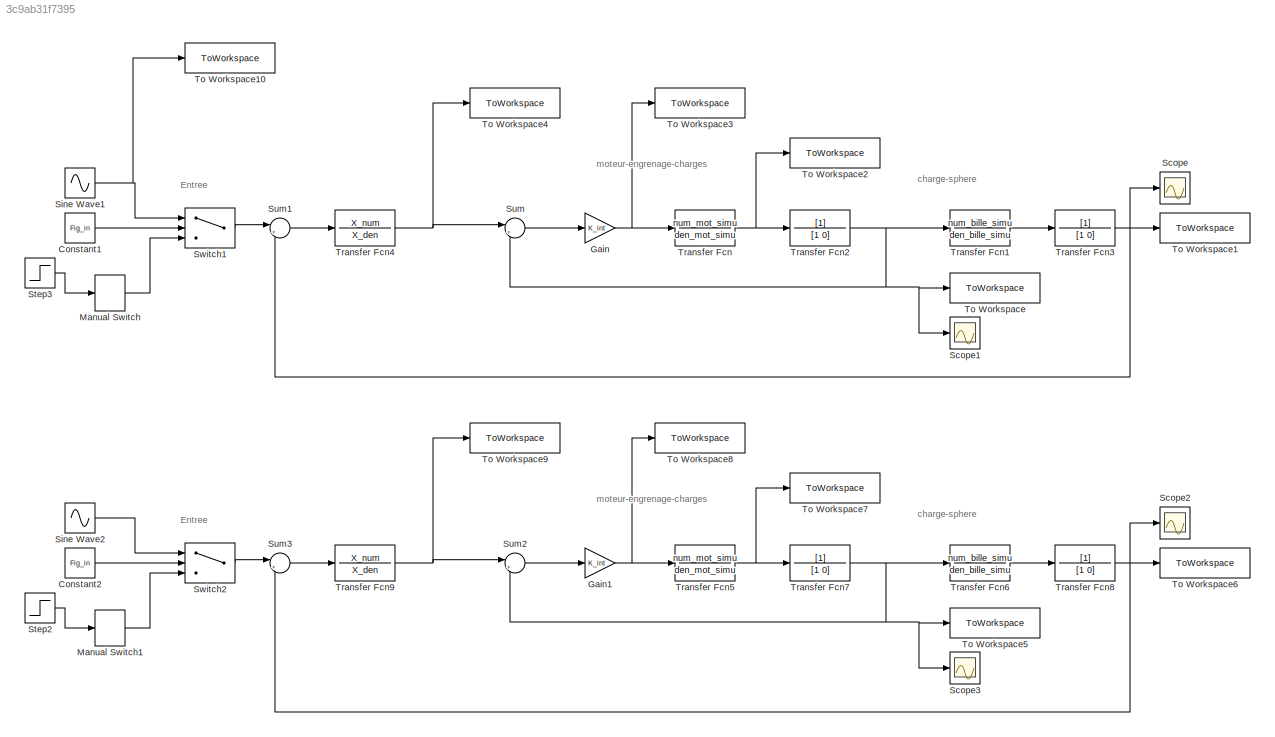
MODEL slx_3c9ab31f7395
KIND model
CONFIG AbsTol = auto
CONFIG EnableMultiTasking = off
CONFIG FixedStep = auto
CONFIG MaxStep = auto
CONFIG MinStep = auto
CONFIG RelTol = 1e-3
CONFIG SampleTimeConstraint = Unconstrained
CONFIG SolverName = VariableStepAuto
CONFIG StartTime = 0.0
CONFIG StopTime = 10
BLOCK [Constant] Constant1
  Value = Fig_in
BLOCK [Constant] Constant2
  Value = Fig_in
BLOCK [Gain] Gain
  Gain = K_int
BLOCK [Gain] Gain1
  Gain = K_int
BLOCK [ManualSwitch] Manual Switch
BLOCK [ManualSwitch] Manual Switch1
BLOCK [Scope] Scope
  Floating = off
  NumInputPorts = 1
  ScopeSpecificationString = Simulink.scopes.TimeScopeBlockCfg('CurrentConfiguration', extmgr.ConfigurationSet(extmgr.Configuration('Core','General UI',true),extmgr.Configuration('Core','Source UI',true),extmgr.Configuration('Sources','WiredSimulink',true),extmgr.Configuration('Visuals','Time Domain',true),extmgr.Configuration('Tools','Plot Navigation',true),extmgr.Configuration('Tools','Measurements',true)),'Version','2024a'...<+31ch>
BLOCK [Scope] Scope1
  Floating = off
  NumInputPorts = 1
  ScopeSpecificationString = Simulink.scopes.TimeScopeBlockCfg('CurrentConfiguration', extmgr.ConfigurationSet(extmgr.Configuration('Core','General UI',true),extmgr.Configuration('Core','Source UI',true),extmgr.Configuration('Sources','WiredSimulink',true,'DataLoggingVariableName','ScopeData1'),extmgr.Configuration('Visuals','Time Domain',true),extmgr.Configuration('Tools','Plot Navigation',true),extmgr.Configuration('Tools',...<+70ch>
BLOCK [Scope] Scope2
  Floating = off
  NumInputPorts = 1
  ScopeSpecificationString = Simulink.scopes.TimeScopeBlockCfg('CurrentConfiguration', extmgr.ConfigurationSet(extmgr.Configuration('Core','General UI',true),extmgr.Configuration('Core','Source UI',true),extmgr.Configuration('Sources','WiredSimulink',true,'DataLoggingVariableName','ScopeData1'),extmgr.Configuration('Visuals','Time Domain',true),extmgr.Configuration('Tools','Plot Navigation',true),extmgr.Configuration('Tools',...<+70ch>
BLOCK [Scope] Scope3
  Floating = off
  NumInputPorts = 1
  ScopeSpecificationString = Simulink.scopes.TimeScopeBlockCfg('CurrentConfiguration', extmgr.ConfigurationSet(extmgr.Configuration('Core','General UI',true),extmgr.Configuration('Core','Source UI',true),extmgr.Configuration('Sources','WiredSimulink',true,'DataLoggingVariableName','ScopeData2'),extmgr.Configuration('Visuals','Time Domain',true),extmgr.Configuration('Tools','Plot Navigation',true),extmgr.Configuration('Tools',...<+70ch>
BLOCK [Sin] Sine Wave1
  Amplitude = Test_Position
  Frequency = Frequence
  SampleTime = 0
BLOCK [Sin] Sine Wave2
  Amplitude = Test_Position
  Frequency = Frequence
  SampleTime = 0
BLOCK [Step] Step2
  After = Test_Position
  SampleTime = 0
BLOCK [Step] Step3
  After = Test_Position
  SampleTime = 0
BLOCK [Sum] Sum
  Inputs = |+-
BLOCK [Sum] Sum1
  Inputs = |+-
BLOCK [Sum] Sum2
  Inputs = |+-
BLOCK [Sum] Sum3
  Inputs = |+-
BLOCK [Switch] Switch1
  Criteria = u2 > Threshold
  InputSameDT = off
  SaturateOnIntegerOverflow = off
BLOCK [Switch] Switch2
  Criteria = u2 > Threshold
  InputSameDT = off
  SaturateOnIntegerOverflow = off
BLOCK [ToWorkspace] To Workspace
  FixptAsFi = on
  MaxDataPoints = inf
  SampleTime = -1
  Save2DSignal = 2-D array (concatenate along first dimension)
  SaveFormat = Timeseries
  VariableName = Theta_C_X
BLOCK [ToWorkspace] To Workspace1
  FixptAsFi = on
  MaxDataPoints = inf
  SampleTime = -1
  SaveFormat = Timeseries
  VariableName = X
BLOCK [ToWorkspace] To Workspace10
  FixptAsFi = on
  MaxDataPoints = inf
  SampleTime = -1
  Save2DSignal = 2-D array (concatenate along first dimension)
  SaveFormat = Timeseries
  VariableName = Entree
BLOCK [ToWorkspace] To Workspace2
  FixptAsFi = on
  MaxDataPoints = inf
  SampleTime = -1
  SaveFormat = Timeseries
  VariableName = Omega_C_X
BLOCK [ToWorkspace] To Workspace3
  FixptAsFi = on
  MaxDataPoints = inf
  SampleTime = -1
  Save2DSignal = 2-D array (concatenate along first dimension)
  SaveFormat = Timeseries
  VariableName = Vm_out_X
BLOCK [ToWorkspace] To Workspace4
  FixptAsFi = on
  MaxDataPoints = inf
  SampleTime = -1
  Save2DSignal = 2-D array (concatenate along first dimension)
  SaveFormat = Timeseries
  VariableName = Theta_Cd_X
BLOCK [ToWorkspace] To Workspace5
  FixptAsFi = on
  MaxDataPoints = inf
  SampleTime = -1
  Save2DSignal = 2-D array (concatenate along first dimension)
  SaveFormat = Timeseries
  VariableName = Theta_C_Y
BLOCK [ToWorkspace] To Workspace6
  FixptAsFi = on
  MaxDataPoints = inf
  SampleTime = -1
  SaveFormat = Timeseries
  VariableName = Y
BLOCK [ToWorkspace] To Workspace7
  FixptAsFi = on
  MaxDataPoints = inf
  SampleTime = -1
  SaveFormat = Timeseries
  VariableName = Omega_C_Y
BLOCK [ToWorkspace] To Workspace8
  FixptAsFi = on
  MaxDataPoints = inf
  SampleTime = -1
  Save2DSignal = 2-D array (concatenate along first dimension)
  SaveFormat = Timeseries
  VariableName = Vm_out_Y
BLOCK [ToWorkspace] To Workspace9
  FixptAsFi = on
  MaxDataPoints = inf
  SampleTime = -1
  Save2DSignal = 2-D array (concatenate along first dimension)
  SaveFormat = Timeseries
  VariableName = Theta_Cd_Y
BLOCK [TransferFcn] Transfer Fcn
  Denominator = den_mot_simu
  Numerator = num_mot_simu
BLOCK [TransferFcn] Transfer Fcn1
  Denominator = den_bille_simu
  Numerator = num_bille_simu
BLOCK [TransferFcn] Transfer Fcn2
  Denominator = [1 0]
BLOCK [TransferFcn] Transfer Fcn3
  Denominator = [1 0]
BLOCK [TransferFcn] Transfer Fcn4
  Denominator = X_den
  Numerator = X_num
BLOCK [TransferFcn] Transfer Fcn5
  Denominator = den_mot_simu
  Numerator = num_mot_simu
BLOCK [TransferFcn] Transfer Fcn6
  Denominator = den_bille_simu
  Numerator = num_bille_simu
BLOCK [TransferFcn] Transfer Fcn7
  Denominator = [1 0]
BLOCK [TransferFcn] Transfer Fcn8
  Denominator = [1 0]
BLOCK [TransferFcn] Transfer Fcn9
  Denominator = X_den
  Numerator = X_num
ANNOTATION (root): Entree
ANNOTATION (root): charge-sphere
ANNOTATION (root): moteur-engrenage-charges
LINE Constant1:1 -> Switch1:2
LINE Constant2:1 -> Switch2:2
NET Gain1:1 -> To Workspace8:1, Transfer Fcn5:1
NET Gain:1 -> To Workspace3:1, Transfer Fcn:1
LINE Manual Switch1:1 -> Switch2:3
LINE Manual Switch:1 -> Switch1:3
NET Sine Wave1:1 -> Switch1:1, To Workspace10:1
LINE Sine Wave2:1 -> Switch2:1
LINE Step2:1 -> Manual Switch1:1
LINE Step3:1 -> Manual Switch:1
LINE Sum1:1 -> Transfer Fcn4:1
LINE Sum2:1 -> Gain1:1
LINE Sum3:1 -> Transfer Fcn9:1
LINE Sum:1 -> Gain:1
LINE Switch1:1 -> Sum1:1
LINE Switch2:1 -> Sum3:1
LINE Transfer Fcn1:1 -> Transfer Fcn3:1
NET Transfer Fcn2:1 -> Scope1:1, Sum:2, To Workspace:1, Transfer Fcn1:1
NET Transfer Fcn3:1 -> Scope:1, Sum1:2, To Workspace1:1
NET Transfer Fcn4:1 -> Sum:1, To Workspace4:1
NET Transfer Fcn5:1 -> To Workspace7:1, Transfer Fcn7:1
LINE Transfer Fcn6:1 -> Transfer Fcn8:1
NET Transfer Fcn7:1 -> Scope3:1, Sum2:2, To Workspace5:1, Transfer Fcn6:1
NET Transfer Fcn8:1 -> Scope2:1, Sum3:2, To Workspace6:1
NET Transfer Fcn9:1 -> Sum2:1, To Workspace9:1
NET Transfer Fcn:1 -> To Workspace2:1, Transfer Fcn2:1
note: NET lines group one-source signal fan-out (src -> all destinations, sorted); 1:1 wires keep LINE
